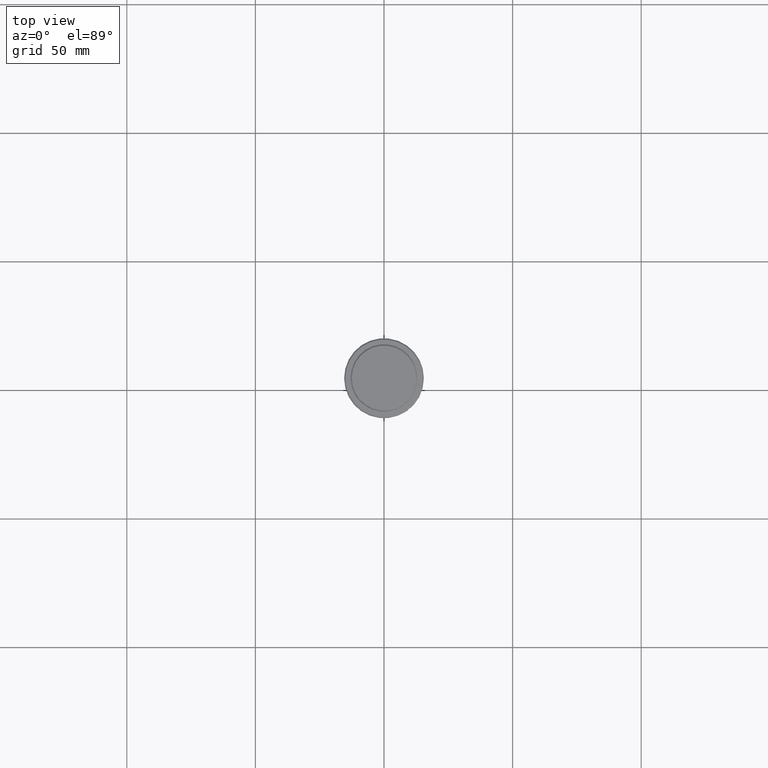
[diagram: clean part render]
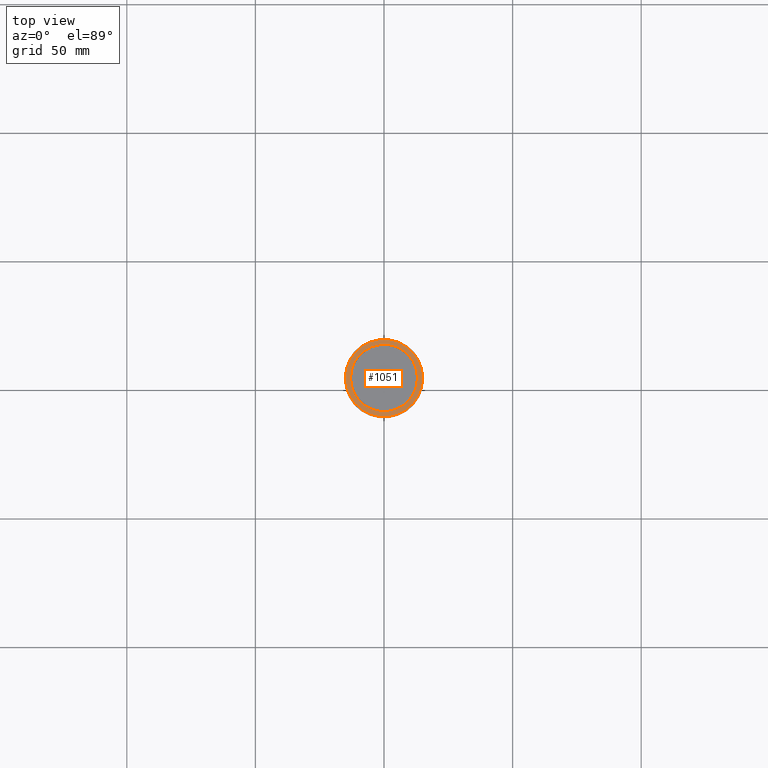
[diagram: same view with one face highlighted and labeled with its STEP entity id]
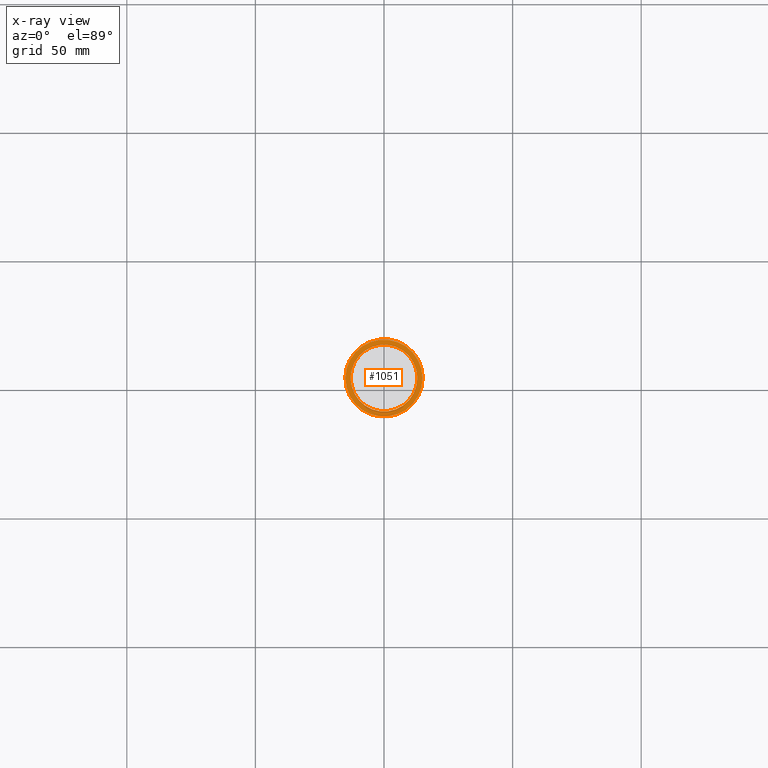
[diagram: x-ray of the same camera — body ghosted, the highlighted face saturated]
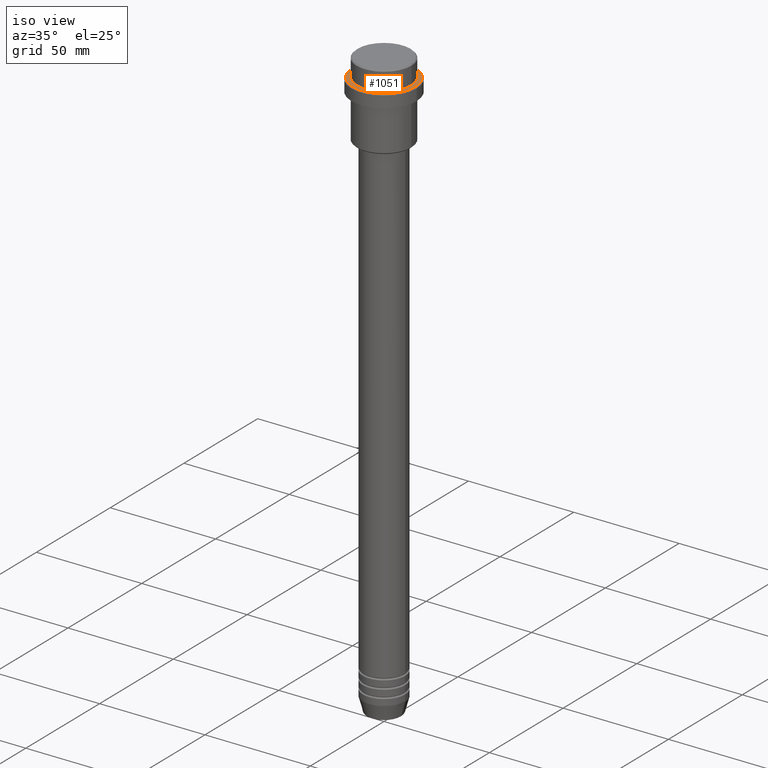
[diagram: same view with one face highlighted and labeled with its STEP entity id]
A machine part, top view. The second image highlights one B-rep face of the part: STEP entity #1051.
The next image is the same camera in x-ray: the body ghosted, the highlighted face saturated — about 0% of this face is hidden behind the body in this view.
A second angle (iso view) of the same face is appended — the face is thin or edge-on in the first view.
In plain terms, the highlighted planar face has unit normal (0, -0, 1).
Its self-contained STEP definition (entity closure, byte-faithful):
#78 = DIRECTION ( 'NONE',  ( 1.000000000000000000, 0.000000000000000000, 0.000000000000000000 ) ) ;
#79 = EDGE_CURVE ( 'NONE', #419, #911, #451, .T. ) ;
#117 = VERTEX_POINT ( 'NONE', #613 ) ;
#153 = VERTEX_POINT ( 'NONE', #1122 ) ;
#205 = AXIS2_PLACEMENT_3D ( 'NONE', #1358, #1016, #1336 ) ;
#219 = EDGE_CURVE ( 'NONE', #911, #419, #738, .T. ) ;
#263 = DIRECTION ( 'NONE',  ( 1.000000000000000000, 0.000000000000000000, 0.000000000000000000 ) ) ;
#268 = CARTESIAN_POINT ( 'NONE',  ( 0.000000000000000000, 12.49999999999999289, -9.000000000000000000 ) ) ;
#326 = CARTESIAN_POINT ( 'NONE',  ( 12.99999999999999467, 0.000000000000000000, -9.000000000000000000 ) ) ;
#375 = CARTESIAN_POINT ( 'NONE',  ( 0.000000000000000000, 0.000000000000000000, -9.000000000000000000 ) ) ;
#381 = FACE_OUTER_BOUND ( 'NONE', #1265, .T. ) ;
#396 = DIRECTION ( 'NONE',  ( -0.000000000000000000, -0.000000000000000000, 1.000000000000000000 ) ) ;
#419 = VERTEX_POINT ( 'NONE', #1095 ) ;
#451 = CIRCLE ( 'NONE', #1302, 12.99999999999999467 ) ;
#515 = ORIENTED_EDGE ( 'NONE', *, *, #1124, .T. ) ;
#518 = DIRECTION ( 'NONE',  ( 1.000000000000000000, 0.000000000000000000, 0.000000000000000000 ) ) ;
#541 = ORIENTED_EDGE ( 'NONE', *, *, #219, .T. ) ;
#547 = EDGE_CURVE ( 'NONE', #117, #153, #893, .T. ) ;
#602 = DIRECTION ( 'NONE',  ( 0.000000000000000000, -0.000000000000000000, 1.000000000000000000 ) ) ;
#613 = CARTESIAN_POINT ( 'NONE',  ( -14.99999999999998579, 0.000000000000000000, -9.000000000000000000 ) ) ;
#655 = AXIS2_PLACEMENT_3D ( 'NONE', #268, #602, #1034 ) ;
#679 = EDGE_LOOP ( 'NONE', ( #541, #1075 ) ) ;
#730 = CARTESIAN_POINT ( 'NONE',  ( 0.000000000000000000, 0.000000000000000000, -9.000000000000000000 ) ) ;
#738 = CIRCLE ( 'NONE', #967, 12.99999999999999467 ) ;
#768 = CIRCLE ( 'NONE', #1083, 14.99999999999998579 ) ;
#818 = FACE_BOUND ( 'NONE', #679, .T. ) ;
#893 = CIRCLE ( 'NONE', #205, 14.99999999999998579 ) ;
#911 = VERTEX_POINT ( 'NONE', #326 ) ;
#967 = AXIS2_PLACEMENT_3D ( 'NONE', #1289, #1280, #78 ) ;
#1016 = DIRECTION ( 'NONE',  ( -0.000000000000000000, -0.000000000000000000, 1.000000000000000000 ) ) ;
#1034 = DIRECTION ( 'NONE',  ( 1.000000000000000000, 0.000000000000000000, 0.000000000000000000 ) ) ;
#1051 = ADVANCED_FACE ( 'NONE', ( #381, #818 ), #1247, .T. ) ;
#1075 = ORIENTED_EDGE ( 'NONE', *, *, #79, .T. ) ;
#1083 = AXIS2_PLACEMENT_3D ( 'NONE', #730, #396, #518 ) ;
#1095 = CARTESIAN_POINT ( 'NONE',  ( -12.99999999999999467, 1.592040838891558504E-15, -9.000000000000000000 ) ) ;
#1122 = CARTESIAN_POINT ( 'NONE',  ( 14.99999999999998579, 1.867586368699712587E-15, -9.000000000000000000 ) ) ;
#1124 = EDGE_CURVE ( 'NONE', #153, #117, #768, .T. ) ;
#1247 = PLANE ( 'NONE',  #655 ) ;
#1265 = EDGE_LOOP ( 'NONE', ( #1396, #515 ) ) ;
#1280 = DIRECTION ( 'NONE',  ( 0.000000000000000000, 0.000000000000000000, -1.000000000000000000 ) ) ;
#1289 = CARTESIAN_POINT ( 'NONE',  ( 0.000000000000000000, 0.000000000000000000, -9.000000000000000000 ) ) ;
#1302 = AXIS2_PLACEMENT_3D ( 'NONE', #375, #1354, #263 ) ;
#1336 = DIRECTION ( 'NONE',  ( 1.000000000000000000, 0.000000000000000000, 0.000000000000000000 ) ) ;
#1354 = DIRECTION ( 'NONE',  ( 0.000000000000000000, 0.000000000000000000, -1.000000000000000000 ) ) ;
#1358 = CARTESIAN_POINT ( 'NONE',  ( 0.000000000000000000, 0.000000000000000000, -9.000000000000000000 ) ) ;
#1396 = ORIENTED_EDGE ( 'NONE', *, *, #547, .T. ) ;